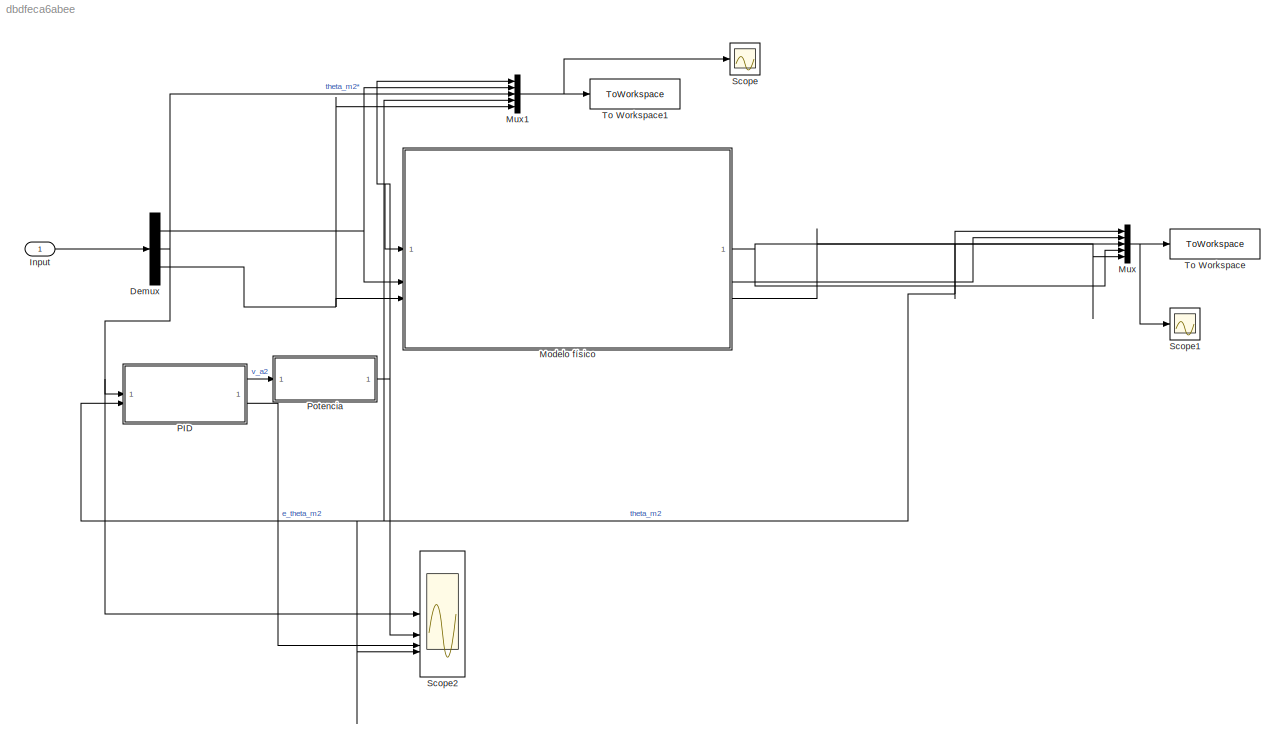
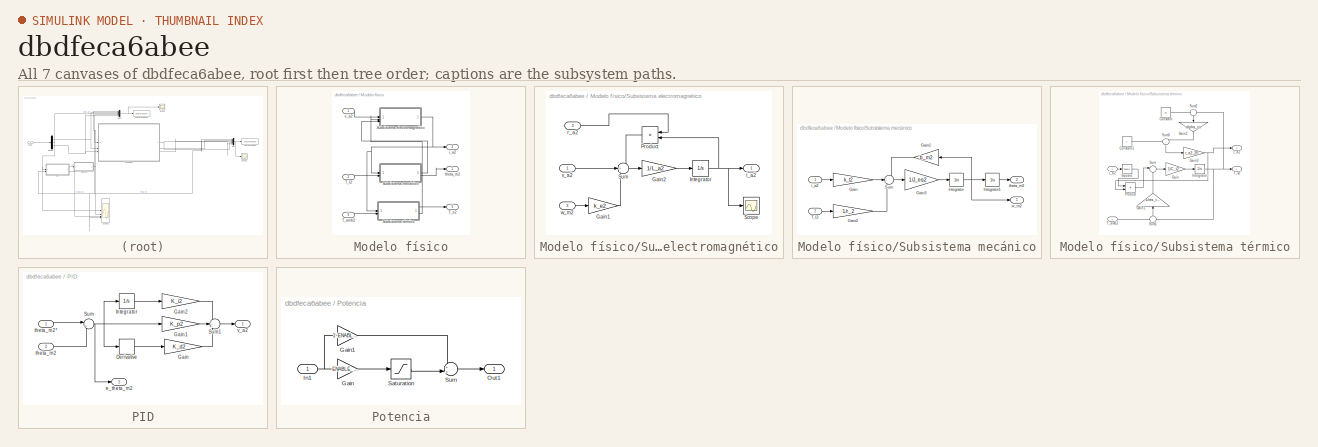
[diagram: thumbnail index - all 7 canvases of the model, root first then tree order]
MODEL slx_dbdfeca6abee
KIND model
CONFIG AbsTol = auto
CONFIG EnableMultiTasking = off
CONFIG FixedStep = auto
CONFIG MaxStep = 0.0001
CONFIG MinStep = auto
CONFIG RelTol = 1e-3
CONFIG SampleTimeConstraint = Unconstrained
CONFIG SolverName = ode15s
CONFIG StartTime = 0.0
CONFIG StopTime = sim_end_time
BLOCK [Demux] Demux
  Outputs = 3
BLOCK [Inport] Input
BLOCK [SubSystem] Modelo físico
BLOCK [SubSystem] Modelo físico/Subsistema electromagnético
BLOCK [Gain] Modelo físico/Subsistema electromagnético/Gain1
  Gain = k_e2
BLOCK [Gain] Modelo físico/Subsistema electromagnético/Gain2
  Gain = 1/L_a2
BLOCK [Integrator] Modelo físico/Subsistema electromagnético/Integrator
BLOCK [Product] Modelo físico/Subsistema electromagnético/Product
  NameLocation = top
BLOCK [Scope] Modelo físico/Subsistema electromagnético/Scope
  Floating = off
  NumInputPorts = 1
  ScopeSpecificationString = Simulink.scopes.TimeScopeBlockCfg('CurrentConfiguration', extmgr.ConfigurationSet(extmgr.Configuration('Core','General UI',true),extmgr.Configuration('Core','Source UI',true),extmgr.Configuration('Sources','WiredSimulink',true,'DataLoggingVariableName','ScopeData2'),extmgr.Configuration('Visuals','Time Domain',true,'SerializedDisplays',{struct('MinYLimReal','-23.42473','MaxYLimReal','57.18803','YL...<+1430ch>
BLOCK [Sum] Modelo físico/Subsistema electromagnético/Sum
  Inputs = -+-
BLOCK [Outport] Modelo físico/Subsistema electromagnético/i_a2
BLOCK [Inport] Modelo físico/Subsistema electromagnético/r_a2
  Port = 2
BLOCK [Inport] Modelo físico/Subsistema electromagnético/v_a2
BLOCK [Inport] Modelo físico/Subsistema electromagnético/w_m2
  Port = 3
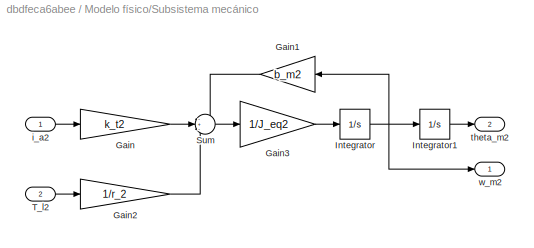
BLOCK [SubSystem] Modelo físico/Subsistema mecánico
BLOCK [Gain] Modelo físico/Subsistema mecánico/Gain
  Gain = k_t2
BLOCK [Gain] Modelo físico/Subsistema mecánico/Gain1
  Gain = b_m2
  NameLocation = top
BLOCK [Gain] Modelo físico/Subsistema mecánico/Gain2
  Gain = 1/r_2
BLOCK [Gain] Modelo físico/Subsistema mecánico/Gain3
  Gain = 1/J_eq2
BLOCK [Integrator] Modelo físico/Subsistema mecánico/Integrator
BLOCK [Integrator] Modelo físico/Subsistema mecánico/Integrator1
  InitialCondition = theta_m0_2
BLOCK [Sum] Modelo físico/Subsistema mecánico/Sum
  Inputs = -+-
BLOCK [Inport] Modelo físico/Subsistema mecánico/T_l2
  Port = 2
BLOCK [Inport] Modelo físico/Subsistema mecánico/i_a2
BLOCK [Outport] Modelo físico/Subsistema mecánico/theta_m2
  Port = 2
BLOCK [Outport] Modelo físico/Subsistema mecánico/w_m2
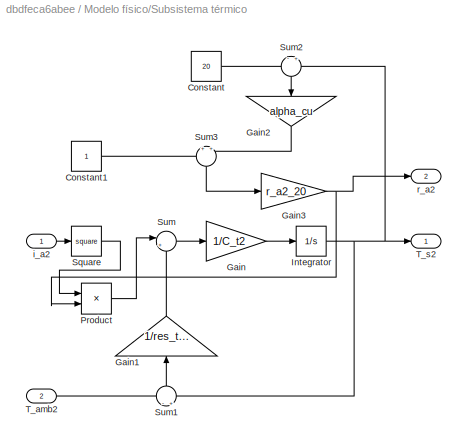
BLOCK [SubSystem] Modelo físico/Subsistema térmico
BLOCK [Constant] Modelo físico/Subsistema térmico/Constant
  Value = 20
BLOCK [Constant] Modelo físico/Subsistema térmico/Constant1
BLOCK [Gain] Modelo físico/Subsistema térmico/Gain
  Gain = 1/C_t2
BLOCK [Gain] Modelo físico/Subsistema térmico/Gain1
  Gain = 1/res_term_2
  NameLocation = right
BLOCK [Gain] Modelo físico/Subsistema térmico/Gain2
  Gain = alpha_cu
  NameLocation = left
BLOCK [Gain] Modelo físico/Subsistema térmico/Gain3
  Gain = r_a2_20
BLOCK [Integrator] Modelo físico/Subsistema térmico/Integrator
  InitialCondition = T_s0_2
BLOCK [Product] Modelo físico/Subsistema térmico/Product
BLOCK [Math] Modelo físico/Subsistema térmico/Square
  Operator = square
BLOCK [Sum] Modelo físico/Subsistema térmico/Sum
  Inputs = |+-
BLOCK [Sum] Modelo físico/Subsistema térmico/Sum1
  Inputs = -|+
  NameLocation = right
BLOCK [Sum] Modelo físico/Subsistema térmico/Sum2
  Inputs = -|+
  NameLocation = left
BLOCK [Sum] Modelo físico/Subsistema térmico/Sum3
  Inputs = +|+
  NameLocation = left
BLOCK [Inport] Modelo físico/Subsistema térmico/T_amb2
  Port = 2
BLOCK [Outport] Modelo físico/Subsistema térmico/T_s2
BLOCK [Inport] Modelo físico/Subsistema térmico/i_a2
BLOCK [Outport] Modelo físico/Subsistema térmico/r_a2
  Port = 2
BLOCK [Inport] Modelo físico/T_amb2
  Port = 3
BLOCK [Inport] Modelo físico/T_l2
  Port = 2
BLOCK [Outport] Modelo físico/T_s2
  Port = 3
BLOCK [Outport] Modelo físico/i_a2
  Port = 2
BLOCK [Outport] Modelo físico/theta_m2
BLOCK [Inport] Modelo físico/v_a2
BLOCK [Mux] Mux
  DisplayOption = bar
  Inputs = 5
BLOCK [Mux] Mux1
  DisplayOption = bar
  Inputs = 5
BLOCK [SubSystem] PID
BLOCK [Derivative] PID/Derivative
BLOCK [Gain] PID/Gain
  Gain = K_d2
BLOCK [Gain] PID/Gain1
  Gain = K_p2
BLOCK [Gain] PID/Gain2
  Gain = K_i2
BLOCK [Integrator] PID/Integrator
BLOCK [Sum] PID/Sum
  Inputs = |+-
BLOCK [Sum] PID/Sum1
  Inputs = +++
BLOCK [Outport] PID/e_theta_m2
  Port = 2
BLOCK [Inport] PID/theta_m2
  Port = 2
BLOCK [Inport] PID/theta_m2*
BLOCK [Outport] PID/v_a2
BLOCK [SubSystem] Potencia
BLOCK [Gain] Potencia/Gain
  Gain = ENABLE_SATURATIONS
BLOCK [Gain] Potencia/Gain1
  Gain = 1-ENABLE_SATURATIONS
BLOCK [Inport] Potencia/In1
BLOCK [Outport] Potencia/Out1
BLOCK [Saturate] Potencia/Saturation
  LowerLimit = -voltage_2
  UpperLimit = +voltage_2
BLOCK [Sum] Potencia/Sum
  Inputs = ++|
BLOCK [Scope] Scope
  Floating = off
  NumInputPorts = 1
  ScopeSpecificationString = Simulink.scopes.TimeScopeBlockCfg('CurrentConfiguration', extmgr.ConfigurationSet(extmgr.Configuration('Core','General UI',true),extmgr.Configuration('Core','Source UI',true),extmgr.Configuration('Sources','WiredSimulink',true,'DataLoggingVariableName','ScopeData1'),extmgr.Configuration('Visuals','Time Domain',true,'SerializedDisplays',{struct('MinYLimReal','6.59338','MaxYLimReal','22.19819','YLab...<+1469ch>
BLOCK [Scope] Scope1
  Floating = off
  NumInputPorts = 1
  ScopeSpecificationString = Simulink.scopes.TimeScopeBlockCfg('CurrentConfiguration', extmgr.ConfigurationSet(extmgr.Configuration('Core','General UI',true),extmgr.Configuration('Core','Source UI',true),extmgr.Configuration('Sources','WiredSimulink',true,'DataLoggingVariableName','ScopeData2'),extmgr.Configuration('Visuals','Time Domain',true,'SerializedDisplays',{struct('MinYLimReal','-1748379.89318','MaxYLimReal','15621771...<+1547ch>
BLOCK [Scope] Scope2
  Floating = off
  NumInputPorts = 4
  ScopeSpecificationString = Simulink.scopes.TimeScopeBlockCfg('CurrentConfiguration', extmgr.ConfigurationSet(extmgr.Configuration('Core','General UI',true),extmgr.Configuration('Core','Source UI',true),extmgr.Configuration('Sources','WiredSimulink',true,'DataLoggingVariableName','ScopeData3'),extmgr.Configuration('Visuals','Time Domain',true,'SerializedDisplays',{struct('MinYLimReal','-11889.31587','MaxYLimReal','15490.6035...<+1638ch>
BLOCK [ToWorkspace] To Workspace
  FixptAsFi = on
  MaxDataPoints = inf
  SampleTime = -1
  SaveFormat = Timeseries
  VariableName = simulationOut
BLOCK [ToWorkspace] To Workspace1
  FixptAsFi = on
  MaxDataPoints = inf
  SampleTime = -1
  SaveFormat = Timeseries
  VariableName = simulationIn
NET Demux:1 -> Modelo físico:2, Mux1:2
NET Demux:2 -> Mux1:3, PID:1, Scope2:1
NET Demux:3 -> Modelo físico:3, Mux1:5
LINE Input:1 -> Demux:1
LINE Modelo físico/Subsistema electromagnético/Gain1:1 -> Modelo físico/Subsistema electromagnético/Sum:3
LINE Modelo físico/Subsistema electromagnético/Gain2:1 -> Modelo físico/Subsistema electromagnético/Integrator:1
NET Modelo físico/Subsistema electromagnético/Integrator:1 -> Modelo físico/Subsistema electromagnético/Product:2, Modelo físico/Subsistema electromagnético/Scope:1, Modelo físico/Subsistema electromagnético/i_a2:1
LINE Modelo físico/Subsistema electromagnético/Product:1 -> Modelo físico/Subsistema electromagnético/Sum:1
LINE Modelo físico/Subsistema electromagnético/Sum:1 -> Modelo físico/Subsistema electromagnético/Gain2:1
LINE Modelo físico/Subsistema electromagnético/r_a2:1 -> Modelo físico/Subsistema electromagnético/Product:1
LINE Modelo físico/Subsistema electromagnético/v_a2:1 -> Modelo físico/Subsistema electromagnético/Sum:2
LINE Modelo físico/Subsistema electromagnético/w_m2:1 -> Modelo físico/Subsistema electromagnético/Gain1:1
NET Modelo físico/Subsistema electromagnético:1 -> Modelo físico/Subsistema mecánico:1, Modelo físico/Subsistema térmico:1, Modelo físico/i_a2:1
LINE Modelo físico/Subsistema mecánico/Gain1:1 -> Modelo físico/Subsistema mecánico/Sum:1
LINE Modelo físico/Subsistema mecánico/Gain2:1 -> Modelo físico/Subsistema mecánico/Sum:3
LINE Modelo físico/Subsistema mecánico/Gain3:1 -> Modelo físico/Subsistema mecánico/Integrator:1
LINE Modelo físico/Subsistema mecánico/Gain:1 -> Modelo físico/Subsistema mecánico/Sum:2
LINE Modelo físico/Subsistema mecánico/Integrator1:1 -> Modelo físico/Subsistema mecánico/theta_m2:1
NET Modelo físico/Subsistema mecánico/Integrator:1 -> Modelo físico/Subsistema mecánico/Gain1:1, Modelo físico/Subsistema mecánico/Integrator1:1, Modelo físico/Subsistema mecánico/w_m2:1
LINE Modelo físico/Subsistema mecánico/Sum:1 -> Modelo físico/Subsistema mecánico/Gain3:1
LINE Modelo físico/Subsistema mecánico/T_l2:1 -> Modelo físico/Subsistema mecánico/Gain2:1
LINE Modelo físico/Subsistema mecánico/i_a2:1 -> Modelo físico/Subsistema mecánico/Gain:1
LINE Modelo físico/Subsistema mecánico:1 -> Modelo físico/Subsistema electromagnético:3
LINE Modelo físico/Subsistema mecánico:2 -> Modelo físico/theta_m2:1
LINE Modelo físico/Subsistema térmico/Constant1:1 -> Modelo físico/Subsistema térmico/Sum3:1
LINE Modelo físico/Subsistema térmico/Constant:1 -> Modelo físico/Subsistema térmico/Sum2:1
LINE Modelo físico/Subsistema térmico/Gain1:1 -> Modelo físico/Subsistema térmico/Sum:2
LINE Modelo físico/Subsistema térmico/Gain2:1 -> Modelo físico/Subsistema térmico/Sum3:2
NET Modelo físico/Subsistema térmico/Gain3:1 -> Modelo físico/Subsistema térmico/Product:2, Modelo físico/Subsistema térmico/r_a2:1
LINE Modelo físico/Subsistema térmico/Gain:1 -> Modelo físico/Subsistema térmico/Integrator:1
NET Modelo físico/Subsistema térmico/Integrator:1 -> Modelo físico/Subsistema térmico/Sum1:2, Modelo físico/Subsistema térmico/Sum2:2, Modelo físico/Subsistema térmico/T_s2:1
LINE Modelo físico/Subsistema térmico/Product:1 -> Modelo físico/Subsistema térmico/Sum:1
LINE Modelo físico/Subsistema térmico/Square:1 -> Modelo físico/Subsistema térmico/Product:1
LINE Modelo físico/Subsistema térmico/Sum1:1 -> Modelo físico/Subsistema térmico/Gain1:1
LINE Modelo físico/Subsistema térmico/Sum2:1 -> Modelo físico/Subsistema térmico/Gain2:1
LINE Modelo físico/Subsistema térmico/Sum3:1 -> Modelo físico/Subsistema térmico/Gain3:1
LINE Modelo físico/Subsistema térmico/Sum:1 -> Modelo físico/Subsistema térmico/Gain:1
LINE Modelo físico/Subsistema térmico/T_amb2:1 -> Modelo físico/Subsistema térmico/Sum1:1
LINE Modelo físico/Subsistema térmico/i_a2:1 -> Modelo físico/Subsistema térmico/Square:1
LINE Modelo físico/Subsistema térmico:1 -> Modelo físico/T_s2:1
LINE Modelo físico/Subsistema térmico:2 -> Modelo físico/Subsistema electromagnético:2
LINE Modelo físico/T_amb2:1 -> Modelo físico/Subsistema térmico:2
LINE Modelo físico/T_l2:1 -> Modelo físico/Subsistema mecánico:2
LINE Modelo físico/v_a2:1 -> Modelo físico/Subsistema electromagnético:1
NET Modelo físico:1 -> Mux1:4, Mux:1, Mux:4, Mux:5, PID:2, Scope2:4
LINE Modelo físico:2 -> Mux:2
LINE Modelo físico:3 -> Mux:3
NET Mux1:1 -> Scope:1, To Workspace1:1
NET Mux:1 -> Scope1:1, To Workspace:1
LINE PID/Derivative:1 -> PID/Gain:1
LINE PID/Gain1:1 -> PID/Sum1:2
LINE PID/Gain2:1 -> PID/Sum1:1
LINE PID/Gain:1 -> PID/Sum1:3
LINE PID/Integrator:1 -> PID/Gain2:1
LINE PID/Sum1:1 -> PID/v_a2:1
NET PID/Sum:1 -> PID/Derivative:1, PID/Gain1:1, PID/Integrator:1, PID/e_theta_m2:1
LINE PID/theta_m2*:1 -> PID/Sum:1
LINE PID/theta_m2:1 -> PID/Sum:2
LINE PID:1 -> Potencia:1
LINE PID:2 -> Scope2:3
LINE Potencia/Gain1:1 -> Potencia/Sum:1
LINE Potencia/Gain:1 -> Potencia/Saturation:1
NET Potencia/In1:1 -> Potencia/Gain1:1, Potencia/Gain:1
LINE Potencia/Saturation:1 -> Potencia/Sum:2
LINE Potencia/Sum:1 -> Potencia/Out1:1
NET Potencia:1 -> Modelo físico:1, Mux1:1, Scope2:2
note: NET lines group one-source signal fan-out (src -> all destinations, sorted); 1:1 wires keep LINE
